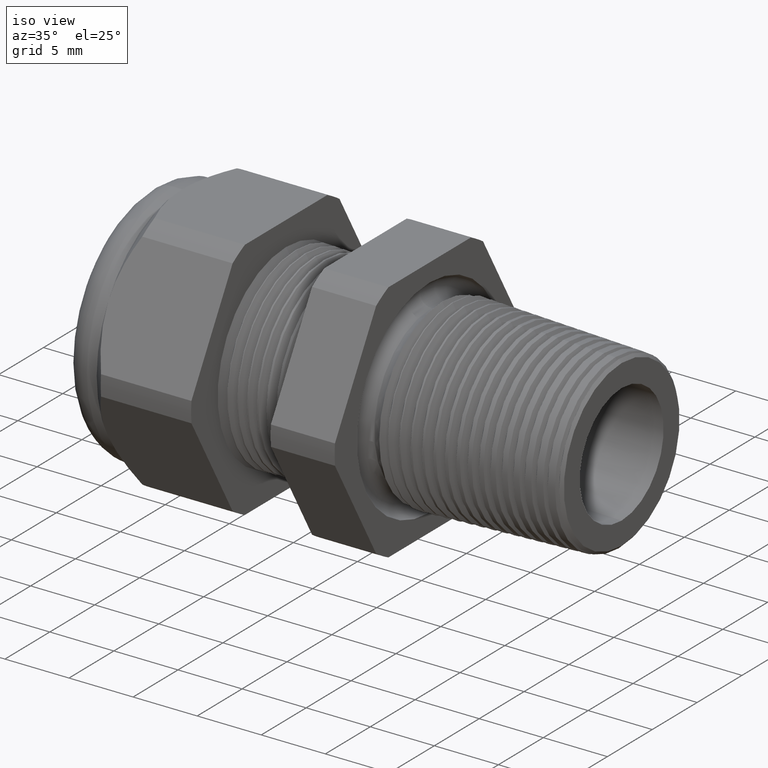
[diagram: clean part render]
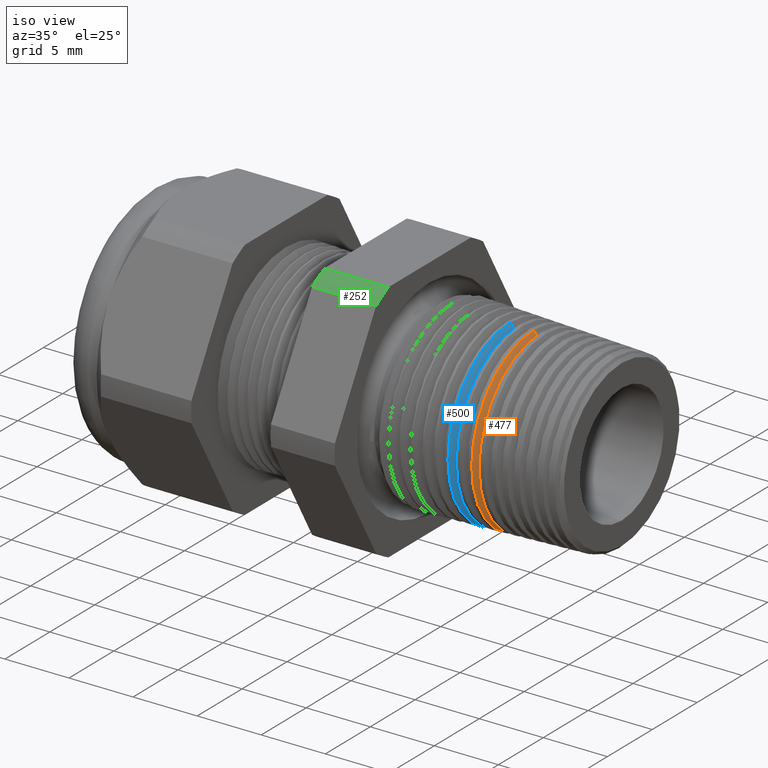
[diagram: same view with three faces highlighted in distinct colors, each labeled with its STEP entity id]
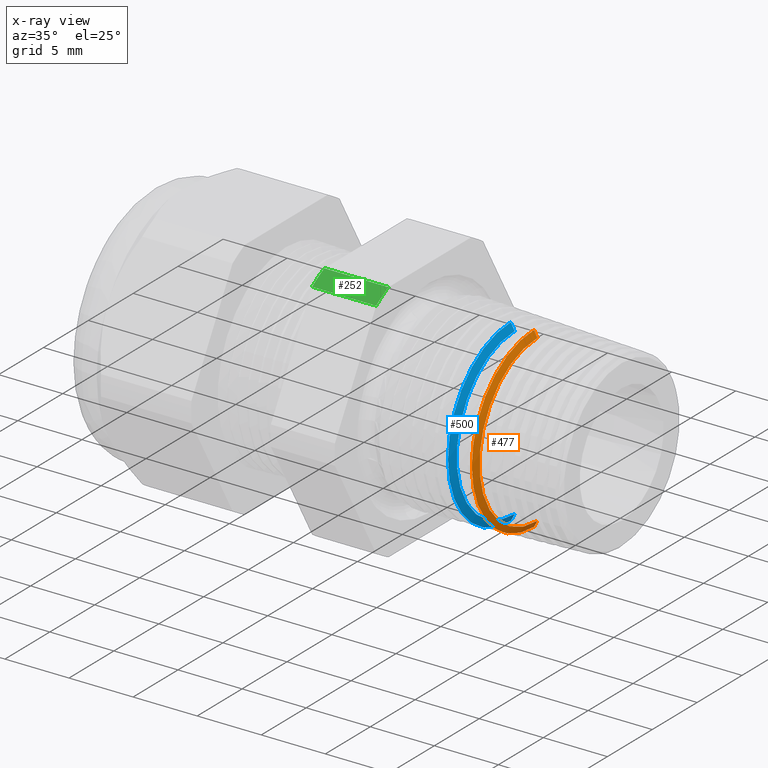
[diagram: x-ray of the same camera — body ghosted, the three highlighted faces saturated]
A machine part, iso view with three faces highlighted in distinct colors.
The next image is the same camera in x-ray (body ghosted, the three faces saturated) — at least one of them is partly hidden behind the body in this view.
Their STEP definitions:

[orange] entity #477 — the highlighted conical surface has half-angle 62 deg.
#477 = ADVANCED_FACE ( 'NONE', ( #2755 ), #2748, .T. ) ;
#478 = EDGE_LOOP ( 'NONE', ( #479, #480, #482, #483 ) ) ;
#479 = ORIENTED_EDGE ( 'NONE', *, *, #1851, .F. ) ;
#480 = ORIENTED_EDGE ( 'NONE', *, *, #481, .F. ) ;
#481 = EDGE_CURVE ( 'NONE', #1738, #1811, #2744, .T. ) ;
#482 = ORIENTED_EDGE ( 'NONE', *, *, #1859, .T. ) ;
#483 = ORIENTED_EDGE ( 'NONE', *, *, #1193, .T. ) ;
#1193 = EDGE_CURVE ( 'NONE', #1855, #1852, #4000, .T. ) ;
#1738 = VERTEX_POINT ( 'NONE', #5052 ) ;
#1811 = VERTEX_POINT ( 'NONE', #5168 ) ;
#1851 = EDGE_CURVE ( 'NONE', #1811, #1852, #5276, .T. ) ;
#1852 = VERTEX_POINT ( 'NONE', #5269 ) ;
#1855 = VERTEX_POINT ( 'NONE', #5263 ) ;
#1859 = EDGE_CURVE ( 'NONE', #1738, #1855, #5257, .T. ) ;
#2741 = DIRECTION ( 'NONE',  ( 0.0000000000000000000, 0.0000000000000000000, -1.000000000000000000 ) ) ;
#2742 = DIRECTION ( 'NONE',  ( 1.000000000000000000, 0.0000000000000000000, 0.0000000000000000000 ) ) ;
#2743 = AXIS2_PLACEMENT_3D ( 'NONE', #2749, #2742, #2741 ) ;
#2744 = CIRCLE ( 'NONE', #2743, 0.2540184132628080000 ) ;
#2745 = DIRECTION ( 'NONE',  ( 0.0000000000000000000, 0.0000000000000000000, 1.000000000000000000 ) ) ;
#2746 = DIRECTION ( 'NONE',  ( -1.000000000000000000, 0.0000000000000000000, 0.0000000000000000000 ) ) ;
#2747 = AXIS2_PLACEMENT_3D ( 'NONE', #2750, #2746, #2745 ) ;
#2748 = CONICAL_SURFACE ( 'NONE', #2747, 0.2846046150878539000, 1.082104136236471800 ) ;
#2749 = CARTESIAN_POINT ( 'NONE',  ( 0.02126297198907900100, 0.0000000000000000000, 0.0000000000000000000 ) ) ;
#2750 = CARTESIAN_POINT ( 'NONE',  ( 0.005000000000000083400, 0.0000000000000000000, 0.0000000000000000000 ) ) ;
#2755 = FACE_OUTER_BOUND ( 'NONE', #478, .T. ) ;
#3997 = DIRECTION ( 'NONE',  ( 0.0000000000000000000, 0.0000000000000000000, 1.000000000000000000 ) ) ;
#3998 = DIRECTION ( 'NONE',  ( 1.000000000000000000, 0.0000000000000000000, 0.0000000000000000000 ) ) ;
#3999 = AXIS2_PLACEMENT_3D ( 'NONE', #4005, #3998, #3997 ) ;
#4000 = CIRCLE ( 'NONE', #3999, 0.2733964630656364200 ) ;
#4005 = CARTESIAN_POINT ( 'NONE',  ( 0.01095948014170895900, 0.0000000000000000000, 0.0000000000000000000 ) ) ;
#5052 = CARTESIAN_POINT ( 'NONE',  ( 0.02126297198907900100, 0.0000000000000000000, 0.2540184132628080000 ) ) ;
#5168 = CARTESIAN_POINT ( 'NONE',  ( 0.02126297198907900100, 3.229484700591632900E-017, -0.2540184132628080000 ) ) ;
#5254 = DIRECTION ( 'NONE',  ( -0.4694715627859018000, 0.0000000000000000000, 0.8829475928589209900 ) ) ;
#5255 = VECTOR ( 'NONE', #5254, 39.37007874015748100 ) ;
#5256 = CARTESIAN_POINT ( 'NONE',  ( 0.005000000000000083400, 0.0000000000000000000, 0.2846046150878539000 ) ) ;
#5257 = LINE ( 'NONE', #5256, #5255 ) ;
#5263 = CARTESIAN_POINT ( 'NONE',  ( 0.01095948014170895900, 0.0000000000000000000, 0.2733964630656364200 ) ) ;
#5269 = CARTESIAN_POINT ( 'NONE',  ( 0.01095948014170895900, 3.350775170450553800E-017, -0.2733964630656364700 ) ) ;
#5270 = DIRECTION ( 'NONE',  ( -0.4694715627859018000, 1.081298943409538000E-016, -0.8829475928589209900 ) ) ;
#5271 = VECTOR ( 'NONE', #5270, 39.37007874015748100 ) ;
#5272 = CARTESIAN_POINT ( 'NONE',  ( 0.005000000000000083400, 3.485401308899047800E-017, -0.2846046150878539000 ) ) ;
#5276 = LINE ( 'NONE', #5272, #5271 ) ;

[blue] entity #500 — the highlighted conical surface has half-angle 62 deg.
#428 = EDGE_CURVE ( 'NONE', #1837, #1836, #2683, .T. ) ;
#429 = ORIENTED_EDGE ( 'NONE', *, *, #1931, .T. ) ;
#430 = ORIENTED_EDGE ( 'NONE', *, *, #1260, .T. ) ;
#500 = ADVANCED_FACE ( 'NONE', ( #2780 ), #2779, .T. ) ;
#501 = EDGE_LOOP ( 'NONE', ( #502, #503, #429, #430 ) ) ;
#502 = ORIENTED_EDGE ( 'NONE', *, *, #1925, .F. ) ;
#503 = ORIENTED_EDGE ( 'NONE', *, *, #428, .F. ) ;
#1260 = EDGE_CURVE ( 'NONE', #1929, #1926, #4115, .T. ) ;
#1836 = VERTEX_POINT ( 'NONE', #5238 ) ;
#1837 = VERTEX_POINT ( 'NONE', #5237 ) ;
#1925 = EDGE_CURVE ( 'NONE', #1836, #1926, #5407, .T. ) ;
#1926 = VERTEX_POINT ( 'NONE', #5398 ) ;
#1929 = VERTEX_POINT ( 'NONE', #5392 ) ;
#1931 = EDGE_CURVE ( 'NONE', #1837, #1929, #5391, .T. ) ;
#2680 = DIRECTION ( 'NONE',  ( 0.0000000000000000000, 0.0000000000000000000, -1.000000000000000000 ) ) ;
#2681 = DIRECTION ( 'NONE',  ( 1.000000000000000000, 0.0000000000000000000, 0.0000000000000000000 ) ) ;
#2682 = AXIS2_PLACEMENT_3D ( 'NONE', #2687, #2681, #2680 ) ;
#2683 = CIRCLE ( 'NONE', #2682, 0.2540184132628080000 ) ;
#2687 = CARTESIAN_POINT ( 'NONE',  ( -0.04873702801092103700, 0.0000000000000000000, 0.0000000000000000000 ) ) ;
#2775 = DIRECTION ( 'NONE',  ( 0.0000000000000000000, 0.0000000000000000000, 1.000000000000000000 ) ) ;
#2776 = DIRECTION ( 'NONE',  ( -1.000000000000000000, 0.0000000000000000000, 0.0000000000000000000 ) ) ;
#2777 = AXIS2_PLACEMENT_3D ( 'NONE', #2785, #2776, #2775 ) ;
#2779 = CONICAL_SURFACE ( 'NONE', #2777, 0.2846046150878539000, 1.082104136236471800 ) ;
#2780 = FACE_OUTER_BOUND ( 'NONE', #501, .T. ) ;
#2785 = CARTESIAN_POINT ( 'NONE',  ( -0.06499999999999996100, 0.0000000000000000000, 0.0000000000000000000 ) ) ;
#4115 = CIRCLE ( 'NONE', #4177, 0.2758871635150180200 ) ;
#4174 = DIRECTION ( 'NONE',  ( 0.0000000000000000000, 0.0000000000000000000, 1.000000000000000000 ) ) ;
#4175 = DIRECTION ( 'NONE',  ( 1.000000000000000000, 0.0000000000000000000, 0.0000000000000000000 ) ) ;
#4176 = CARTESIAN_POINT ( 'NONE',  ( -0.06036484877867079300, 0.0000000000000000000, 0.0000000000000000000 ) ) ;
#4177 = AXIS2_PLACEMENT_3D ( 'NONE', #4176, #4175, #4174 ) ;
#5237 = CARTESIAN_POINT ( 'NONE',  ( -0.04873702801092103700, 0.0000000000000000000, 0.2540184132628080000 ) ) ;
#5238 = CARTESIAN_POINT ( 'NONE',  ( -0.04873702801092103700, 3.244735842256483300E-017, -0.2540184132628080000 ) ) ;
#5388 = DIRECTION ( 'NONE',  ( -0.4694715627859018000, 0.0000000000000000000, 0.8829475928589209900 ) ) ;
#5389 = VECTOR ( 'NONE', #5388, 39.37007874015748100 ) ;
#5390 = CARTESIAN_POINT ( 'NONE',  ( -0.06499999999999996100, 0.0000000000000000000, 0.2846046150878539000 ) ) ;
#5391 = LINE ( 'NONE', #5390, #5389 ) ;
#5392 = CARTESIAN_POINT ( 'NONE',  ( -0.06036484877867079300, 0.0000000000000000000, 0.2758871635150180200 ) ) ;
#5398 = CARTESIAN_POINT ( 'NONE',  ( -0.06036484877867079300, 3.380674635252238600E-017, -0.2758871635150180200 ) ) ;
#5399 = DIRECTION ( 'NONE',  ( -0.4694715627859018000, 1.081298943409538000E-016, -0.8829475928589209900 ) ) ;
#5400 = VECTOR ( 'NONE', #5399, 39.37007874015748100 ) ;
#5401 = CARTESIAN_POINT ( 'NONE',  ( -0.06499999999999996100, 3.485401308899047800E-017, -0.2846046150878539000 ) ) ;
#5407 = LINE ( 'NONE', #5401, #5400 ) ;

[green] entity #252 — the highlighted cylindrical surface (partial cylindrical patch) has radius 10.5727 mm, axis along (-1, 0, 0).
#144 = VERTEX_POINT ( 'NONE', #2231 ) ;
#146 = EDGE_CURVE ( 'NONE', #144, #147, #2230, .T. ) ;
#147 = VERTEX_POINT ( 'NONE', #2225 ) ;
#248 = EDGE_CURVE ( 'NONE', #147, #249, #2374, .T. ) ;
#249 = VERTEX_POINT ( 'NONE', #2429 ) ;
#252 = ADVANCED_FACE ( 'NONE', ( #2424 ), #2422, .T. ) ;
#253 = EDGE_LOOP ( 'NONE', ( #254, #255, #309, #312 ) ) ;
#254 = ORIENTED_EDGE ( 'NONE', *, *, #248, .F. ) ;
#255 = ORIENTED_EDGE ( 'NONE', *, *, #146, .F. ) ;
#309 = ORIENTED_EDGE ( 'NONE', *, *, #310, .T. ) ;
#310 = EDGE_CURVE ( 'NONE', #144, #311, #2524, .T. ) ;
#311 = VERTEX_POINT ( 'NONE', #2520 ) ;
#312 = ORIENTED_EDGE ( 'NONE', *, *, #313, .F. ) ;
#313 = EDGE_CURVE ( 'NONE', #249, #311, #2519, .T. ) ;
#2225 = CARTESIAN_POINT ( 'NONE',  ( -0.3100000000000000000, -0.2344281053908205100, 0.3439586107409878200 ) ) ;
#2226 = DIRECTION ( 'NONE',  ( 0.0000000000000000000, 0.0000000000000000000, -1.000000000000000000 ) ) ;
#2227 = DIRECTION ( 'NONE',  ( 1.000000000000000000, 0.0000000000000000000, 0.0000000000000000000 ) ) ;
#2228 = CARTESIAN_POINT ( 'NONE',  ( -0.3100000000000000000, 0.0000000000000000000, 0.0000000000000000000 ) ) ;
#2229 = AXIS2_PLACEMENT_3D ( 'NONE', #2228, #2227, #2226 ) ;
#2230 = CIRCLE ( 'NONE', #2229, 0.4162500000000000100 ) ;
#2231 = CARTESIAN_POINT ( 'NONE',  ( -0.3100000000000000000, -0.1806628420566886700, 0.3749999999999999400 ) ) ;
#2371 = DIRECTION ( 'NONE',  ( -1.000000000000000000, 0.0000000000000000000, 0.0000000000000000000 ) ) ;
#2372 = VECTOR ( 'NONE', #2371, 39.37007874015748100 ) ;
#2373 = CARTESIAN_POINT ( 'NONE',  ( 0.2800000000000000300, -0.2344281053908205100, 0.3439586107409878200 ) ) ;
#2374 = LINE ( 'NONE', #2373, #2372 ) ;
#2418 = DIRECTION ( 'NONE',  ( 0.0000000000000000000, 0.0000000000000000000, 1.000000000000000000 ) ) ;
#2419 = DIRECTION ( 'NONE',  ( -1.000000000000000000, 0.0000000000000000000, 0.0000000000000000000 ) ) ;
#2420 = CARTESIAN_POINT ( 'NONE',  ( 0.2800000000000000300, 0.0000000000000000000, 0.0000000000000000000 ) ) ;
#2421 = AXIS2_PLACEMENT_3D ( 'NONE', #2420, #2419, #2418 ) ;
#2422 = CYLINDRICAL_SURFACE ( 'NONE', #2421, 0.4162500000000000100 ) ;
#2424 = FACE_OUTER_BOUND ( 'NONE', #253, .T. ) ;
#2429 = CARTESIAN_POINT ( 'NONE',  ( -0.5068503937007874400, -0.2344281053908205100, 0.3439586107409878200 ) ) ;
#2515 = DIRECTION ( 'NONE',  ( 0.0000000000000000000, 0.0000000000000000000, 1.000000000000000000 ) ) ;
#2516 = DIRECTION ( 'NONE',  ( -1.000000000000000000, 0.0000000000000000000, 0.0000000000000000000 ) ) ;
#2517 = CARTESIAN_POINT ( 'NONE',  ( -0.5068503937007874400, 0.0000000000000000000, 0.0000000000000000000 ) ) ;
#2518 = AXIS2_PLACEMENT_3D ( 'NONE', #2517, #2516, #2515 ) ;
#2519 = CIRCLE ( 'NONE', #2518, 0.4162500000000000100 ) ;
#2520 = CARTESIAN_POINT ( 'NONE',  ( -0.5068503937007874400, -0.1806628420566886700, 0.3749999999999999400 ) ) ;
#2521 = DIRECTION ( 'NONE',  ( -1.000000000000000000, 0.0000000000000000000, 0.0000000000000000000 ) ) ;
#2522 = VECTOR ( 'NONE', #2521, 39.37007874015748100 ) ;
#2523 = CARTESIAN_POINT ( 'NONE',  ( 0.2800000000000000300, -0.1806628420566886700, 0.3749999999999999400 ) ) ;
#2524 = LINE ( 'NONE', #2523, #2522 ) ;